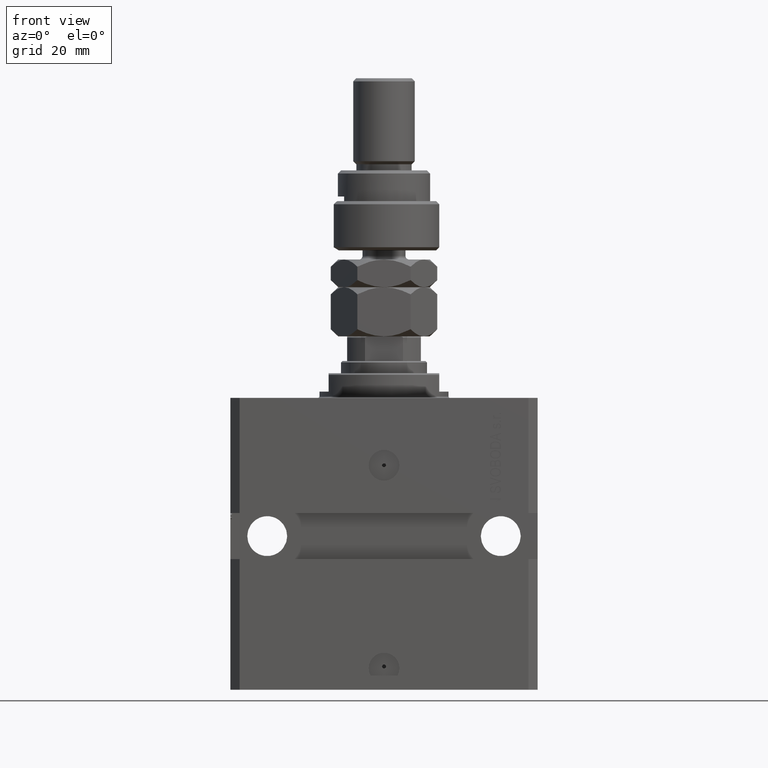
[diagram: clean part render]
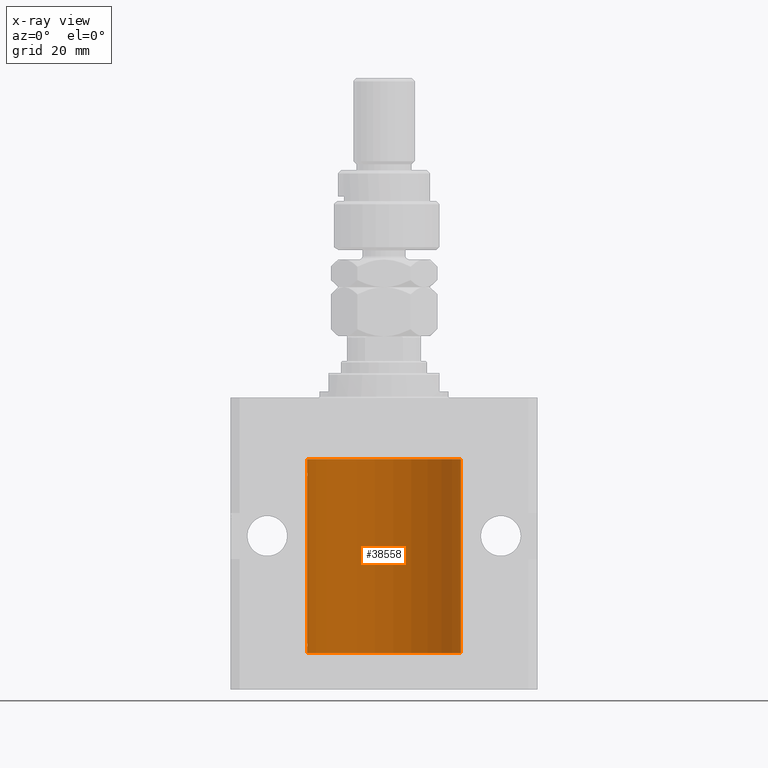
[diagram: x-ray — body ghosted, one internal face saturated and labeled with its STEP entity id]
A machine part, front view, then the same camera in x-ray: the body is ghosted and one INTERNAL B-rep face — a face not visible from any outside direction — is saturated and labeled: STEP entity #38558.
In plain terms, the highlighted cylindrical surface (partial cylindrical patch) has radius 25 mm, axis along (0, 0, 1).
Its self-contained STEP definition (entity closure, byte-faithful):
#595 = CARTESIAN_POINT ( 'NONE',  ( -24.99957903978827289, 0.1636401650351867743, -24.39126259047981904 ) ) ;
#1642 = CARTESIAN_POINT ( 'NONE',  ( -25.00000000000000000, 3.061616997868383043E-15, -83.09999999999999432 ) ) ;
#3193 = LINE ( 'NONE', #7017, #33454 ) ;
#4826 = EDGE_CURVE ( 'NONE', #29131, #48142, #3193, .T. ) ;
#7017 = CARTESIAN_POINT ( 'NONE',  ( -25.00000000000000000, 3.061616997868383043E-15, -83.09999999999999432 ) ) ;
#7266 = CARTESIAN_POINT ( 'NONE',  ( -25.00000000000008171, 3.517566579358498221E-13, -81.12500000000328271 ) ) ;
#7518 = CARTESIAN_POINT ( 'NONE',  ( -25.00000000000000000, -2.172643007029407462E-14, -79.87500000000000000 ) ) ;
#8100 = EDGE_CURVE ( 'NONE', #12803, #34433, #42729, .T. ) ;
#8189 = CARTESIAN_POINT ( 'NONE',  ( 25.00000000000000000, 0.000000000000000000, -20.00000000000000355 ) ) ;
#9874 = DIRECTION ( 'NONE',  ( -0.000000000000000000, -0.000000000000000000, 1.000000000000000000 ) ) ;
#10692 = DIRECTION ( 'NONE',  ( -0.000000000000000000, -0.000000000000000000, 1.000000000000000000 ) ) ;
#11357 = CARTESIAN_POINT ( 'NONE',  ( -24.99812965334069759, 0.3150303239408748790, -79.95401901831677094 ) ) ;
#11561 = ORIENTED_EDGE ( 'NONE', *, *, #49870, .T. ) ;
#11682 = VERTEX_POINT ( 'NONE', #28981 ) ;
#11865 = VECTOR ( 'NONE', #32915, 1000.000000000000000 ) ;
#11997 = ORIENTED_EDGE ( 'NONE', *, *, #17231, .T. ) ;
#12725 = DIRECTION ( 'NONE',  ( 1.000000000000000000, 0.000000000000000000, 0.000000000000000000 ) ) ;
#12803 = VERTEX_POINT ( 'NONE', #48578 ) ;
#12825 = CARTESIAN_POINT ( 'NONE',  ( -25.00000000000001421, 0.08259386895071110790, -24.37500000000000000 ) ) ;
#13258 = CARTESIAN_POINT ( 'NONE',  ( -25.00000000000000000, 3.061616997868383043E-15, -83.09999999999999432 ) ) ;
#13430 = AXIS2_PLACEMENT_3D ( 'NONE', #31900, #20159, #27826 ) ;
#13445 = EDGE_CURVE ( 'NONE', #13694, #11682, #44846, .T. ) ;
#13686 = ORIENTED_EDGE ( 'NONE', *, *, #4826, .F. ) ;
#13694 = VERTEX_POINT ( 'NONE', #32311 ) ;
#14376 = ORIENTED_EDGE ( 'NONE', *, *, #13445, .F. ) ;
#14921 = CARTESIAN_POINT ( 'NONE',  ( -25.00000000000000000, 0.08259386895070071344, -79.87500000000000000 ) ) ;
#15729 = AXIS2_PLACEMENT_3D ( 'NONE', #36758, #10692, #29344 ) ;
#16780 = CARTESIAN_POINT ( 'NONE',  ( -25.00000000000000000, 3.061616997868383043E-15, -83.09999999999999432 ) ) ;
#17072 = DIRECTION ( 'NONE',  ( 0.000000000000000000, 0.000000000000000000, 1.000000000000000000 ) ) ;
#17231 = EDGE_CURVE ( 'NONE', #34433, #48142, #26492, .T. ) ;
#17592 = CYLINDRICAL_SURFACE ( 'NONE', #15729, 25.00000000000000000 ) ;
#17719 = AXIS2_PLACEMENT_3D ( 'NONE', #36733, #17072, #12725 ) ;
#17957 = ORIENTED_EDGE ( 'NONE', *, *, #8100, .T. ) ;
#19271 = CARTESIAN_POINT ( 'NONE',  ( -24.99815474281802352, 0.3253832813992149631, -81.05855609393753980 ) ) ;
#19504 = CARTESIAN_POINT ( 'NONE',  ( -25.00000000000008171, 3.517566451145503275E-13, -25.62500000000326850 ) ) ;
#19753 = CARTESIAN_POINT ( 'NONE',  ( -24.99402840204668408, 0.5587119681668532012, -25.32511555871104747 ) ) ;
#20019 = CARTESIAN_POINT ( 'NONE',  ( -24.99402840204668408, 0.5587119681668529791, -80.82511555871103326 ) ) ;
#20159 = DIRECTION ( 'NONE',  ( 0.000000000000000000, 0.000000000000000000, 1.000000000000000000 ) ) ;
#20491 = CARTESIAN_POINT ( 'NONE',  ( -24.99815474281801997, 0.3253832813992120210, -25.55855609393753269 ) ) ;
#23584 = CARTESIAN_POINT ( 'NONE',  ( -24.99711159039964414, 0.3843660423108813950, -24.50046193055078803 ) ) ;
#26050 = EDGE_CURVE ( 'NONE', #12803, #33197, #30787, .T. ) ;
#26492 = CIRCLE ( 'NONE', #13430, 25.00000000000000000 ) ;
#27686 = CARTESIAN_POINT ( 'NONE',  ( -24.99957903978828000, 0.1636401650351763382, -79.89126259047981193 ) ) ;
#27826 = DIRECTION ( 'NONE',  ( 1.000000000000000000, 0.000000000000000000, 0.000000000000000000 ) ) ;
#28414 = CARTESIAN_POINT ( 'NONE',  ( -24.99405295648008263, 0.5573304927633336847, -24.67348832933669200 ) ) ;
#28981 = CARTESIAN_POINT ( 'NONE',  ( -25.00000000000008171, 3.517566451145503275E-13, -25.62500000000326850 ) ) ;
#29098 = FACE_OUTER_BOUND ( 'NONE', #33525, .T. ) ;
#29131 = VERTEX_POINT ( 'NONE', #35831 ) ;
#29344 = DIRECTION ( 'NONE',  ( 1.000000000000000000, 0.000000000000000000, 0.000000000000000000 ) ) ;
#30506 = CARTESIAN_POINT ( 'NONE',  ( -24.99218483271614843, 0.6250578298876484640, -80.66284432778144264 ) ) ;
#30682 = B_SPLINE_CURVE_WITH_KNOTS ( 'NONE', 3,
 ( #47811, #12825, #595, #32240, #23584, #28414, #38915, #43729, #19753, #20491, #35071, #19504 ),
 .UNSPECIFIED., .F., .F.,
 ( 4, 2, 2, 2, 2, 4 ),
 ( 4.396951630244787669E-19, 0.0002442639708601663379, 0.0004885279417203322420, 0.0009770558834406712061, 0.001465583825161009953, 0.001954111766881348917 ),
 .UNSPECIFIED. ) ;
#30787 = CIRCLE ( 'NONE', #17719, 25.00000000000000000 ) ;
#31900 = CARTESIAN_POINT ( 'NONE',  ( 0.000000000000000000, 0.000000000000000000, -20.00000000000000355 ) ) ;
#32057 = VECTOR ( 'NONE', #46798, 1000.000000000000000 ) ;
#32240 = CARTESIAN_POINT ( 'NONE',  ( -24.99812965334069403, 0.3150303239408847600, -24.45401901831676383 ) ) ;
#32311 = CARTESIAN_POINT ( 'NONE',  ( -25.00000000000000000, -2.172643007029407462E-14, -79.87500000000000000 ) ) ;
#32569 = ORIENTED_EDGE ( 'NONE', *, *, #26050, .F. ) ;
#32901 = VERTEX_POINT ( 'NONE', #48753 ) ;
#32915 = DIRECTION ( 'NONE',  ( -0.000000000000000000, -0.000000000000000000, 1.000000000000000000 ) ) ;
#33197 = VERTEX_POINT ( 'NONE', #1642 ) ;
#33454 = VECTOR ( 'NONE', #41494, 1000.000000000000000 ) ;
#33525 = EDGE_LOOP ( 'NONE', ( #46670, #32569, #17957, #11997, #13686, #42079, #14376, #11561 ) ) ;
#34433 = VERTEX_POINT ( 'NONE', #8189 ) ;
#34592 = CARTESIAN_POINT ( 'NONE',  ( -24.99218772708281122, 0.6249420913990306747, -80.33671206966755562 ) ) ;
#34922 = EDGE_CURVE ( 'NONE', #29131, #11682, #30682, .T. ) ;
#35071 = CARTESIAN_POINT ( 'NONE',  ( -24.99999999999998934, 0.1631672031814573320, -25.62499999999985079 ) ) ;
#35093 = CARTESIAN_POINT ( 'NONE',  ( -24.99711159039963704, 0.3843660423108775648, -80.00046193055077026 ) ) ;
#35348 = CARTESIAN_POINT ( 'NONE',  ( -24.99999999999998579, 0.1631672031814578039, -81.12499999999981526 ) ) ;
#35831 = CARTESIAN_POINT ( 'NONE',  ( -25.00000000000000000, -9.603917560234690571E-15, -24.37500000000000000 ) ) ;
#36733 = CARTESIAN_POINT ( 'NONE',  ( 0.000000000000000000, 0.000000000000000000, -83.09999999999999432 ) ) ;
#36758 = CARTESIAN_POINT ( 'NONE',  ( 0.000000000000000000, 0.000000000000000000, -83.09999999999999432 ) ) ;
#38558 = ADVANCED_FACE ( 'NONE', ( #29098 ), #17592, .F. ) ;
#38586 = VECTOR ( 'NONE', #9874, 1000.000000000000000 ) ;
#38915 = CARTESIAN_POINT ( 'NONE',  ( -24.99218772708281477, 0.6249420913990341164, -24.83671206966754852 ) ) ;
#40076 = B_SPLINE_CURVE_WITH_KNOTS ( 'NONE', 3,
 ( #7518, #14921, #27686, #11357, #35093, #50417, #34592, #30506, #20019, #19271, #35348, #7266 ),
 .UNSPECIFIED., .F., .F.,
 ( 4, 2, 2, 2, 2, 4 ),
 ( 1.760582088384631428E-18, 0.0002442639708601806493, 0.0004885279417203595639, 0.0009770558834406879029, 0.001465583825161016242, 0.001954111766881344581 ),
 .UNSPECIFIED. ) ;
#41494 = DIRECTION ( 'NONE',  ( -0.000000000000000000, -0.000000000000000000, 1.000000000000000000 ) ) ;
#42079 = ORIENTED_EDGE ( 'NONE', *, *, #34922, .T. ) ;
#42729 = LINE ( 'NONE', #47293, #32057 ) ;
#43729 = CARTESIAN_POINT ( 'NONE',  ( -24.99218483271614843, 0.6250578298876515726, -25.16284432778144975 ) ) ;
#44846 = LINE ( 'NONE', #16780, #38586 ) ;
#46670 = ORIENTED_EDGE ( 'NONE', *, *, #47412, .F. ) ;
#46798 = DIRECTION ( 'NONE',  ( -0.000000000000000000, -0.000000000000000000, 1.000000000000000000 ) ) ;
#47293 = CARTESIAN_POINT ( 'NONE',  ( 25.00000000000000000, 0.000000000000000000, -83.09999999999999432 ) ) ;
#47412 = EDGE_CURVE ( 'NONE', #33197, #32901, #48744, .T. ) ;
#47811 = CARTESIAN_POINT ( 'NONE',  ( -25.00000000000000000, -9.603917560234690571E-15, -24.37500000000000000 ) ) ;
#47879 = CARTESIAN_POINT ( 'NONE',  ( -25.00000000000000000, 3.061616997868383043E-15, -20.00000000000000355 ) ) ;
#48142 = VERTEX_POINT ( 'NONE', #47879 ) ;
#48578 = CARTESIAN_POINT ( 'NONE',  ( 25.00000000000000000, 0.000000000000000000, -83.09999999999999432 ) ) ;
#48744 = LINE ( 'NONE', #13258, #11865 ) ;
#48753 = CARTESIAN_POINT ( 'NONE',  ( -25.00000000000008171, 3.517566579358498221E-13, -81.12500000000328271 ) ) ;
#49870 = EDGE_CURVE ( 'NONE', #13694, #32901, #40076, .T. ) ;
#50417 = CARTESIAN_POINT ( 'NONE',  ( -24.99405295648007908, 0.5573304927633301320, -80.17348832933667779 ) ) ;